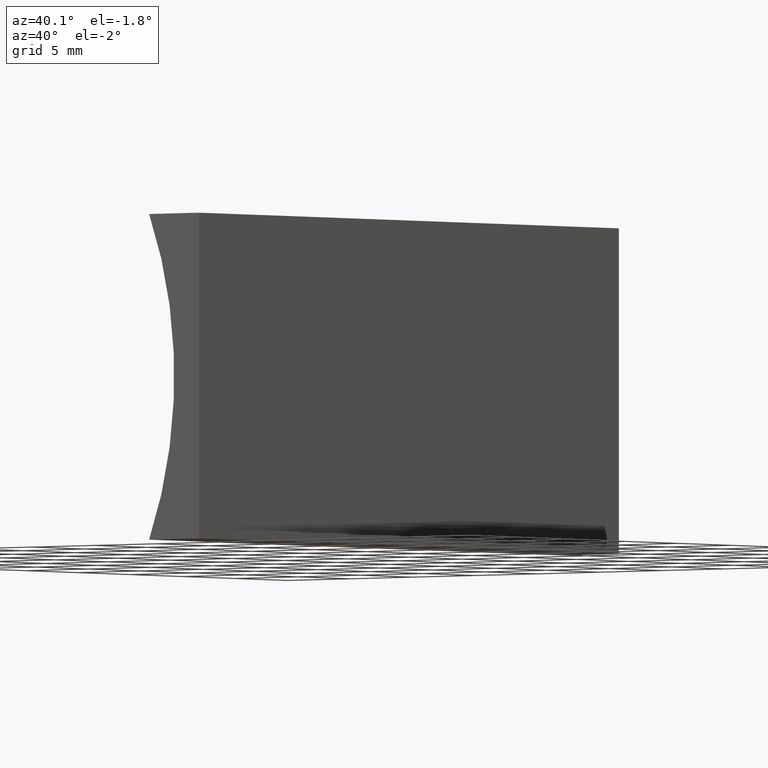
[diagram: clean part render]
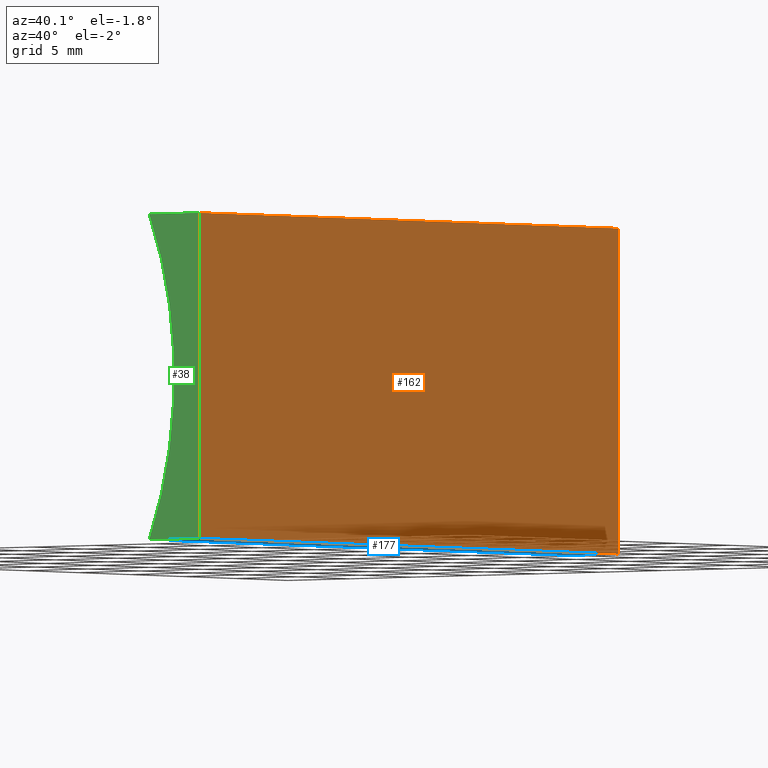
[diagram: same view with three faces highlighted in distinct colors, each labeled with its STEP entity id]
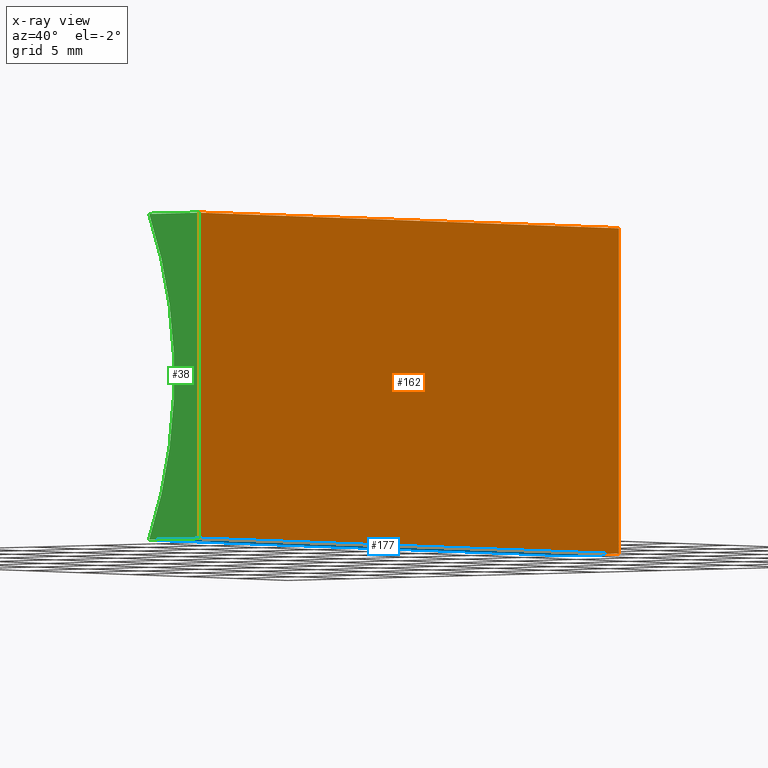
[diagram: x-ray of the same camera — body ghosted, the three highlighted faces saturated]
A machine part, auxiliary view with three faces highlighted in distinct colors.
The next image is the same camera in x-ray (body ghosted, the three faces saturated) — at least one of them is partly hidden behind the body in this view.
Their STEP definitions:

[orange] entity #162 — the highlighted planar face has unit normal (-1, 0, 0).
#5 = ORIENTED_EDGE ( 'NONE', *, *, #176, .T. ) ;
#8 = PLANE ( 'NONE',  #158 ) ;
#11 = ORIENTED_EDGE ( 'NONE', *, *, #113, .T. ) ;
#18 = VECTOR ( 'NONE', #165, 1000.000000000000000 ) ;
#21 = CARTESIAN_POINT ( 'NONE',  ( 0.0000000000000000000, 40.00000000000000000, 0.0000000000000000000 ) ) ;
#34 = CARTESIAN_POINT ( 'NONE',  ( 0.0000000000000000000, 40.00000000000000000, 0.0000000000000000000 ) ) ;
#42 = CARTESIAN_POINT ( 'NONE',  ( 1.224646799147353300E-015, 40.00000000000000000, 20.00000000000000000 ) ) ;
#46 = VECTOR ( 'NONE', #54, 1000.000000000000000 ) ;
#54 = DIRECTION ( 'NONE',  ( -6.123233995736766000E-017, -0.0000000000000000000, -1.000000000000000000 ) ) ;
#56 = ORIENTED_EDGE ( 'NONE', *, *, #79, .F. ) ;
#59 = DIRECTION ( 'NONE',  ( 6.123233995736766000E-017, 0.0000000000000000000, 1.000000000000000000 ) ) ;
#76 = VECTOR ( 'NONE', #118, 1000.000000000000000 ) ;
#79 = EDGE_CURVE ( 'NONE', #101, #173, #149, .T. ) ;
#81 = FACE_OUTER_BOUND ( 'NONE', #85, .T. ) ;
#85 = EDGE_LOOP ( 'NONE', ( #11, #130, #56, #5 ) ) ;
#89 = CARTESIAN_POINT ( 'NONE',  ( 0.0000000000000000000, 40.00000000000000000, 0.0000000000000000000 ) ) ;
#90 = CARTESIAN_POINT ( 'NONE',  ( 0.0000000000000000000, 0.0000000000000000000, 0.0000000000000000000 ) ) ;
#101 = VERTEX_POINT ( 'NONE', #42 ) ;
#103 = EDGE_CURVE ( 'NONE', #173, #131, #144, .T. ) ;
#107 = VECTOR ( 'NONE', #160, 1000.000000000000000 ) ;
#113 = EDGE_CURVE ( 'NONE', #200, #131, #156, .T. ) ;
#118 = DIRECTION ( 'NONE',  ( -0.0000000000000000000, -1.000000000000000000, -0.0000000000000000000 ) ) ;
#121 = CARTESIAN_POINT ( 'NONE',  ( 1.224646799147353300E-015, 40.00000000000000000, 20.00000000000000000 ) ) ;
#130 = ORIENTED_EDGE ( 'NONE', *, *, #103, .F. ) ;
#131 = VERTEX_POINT ( 'NONE', #90 ) ;
#134 = DIRECTION ( 'NONE',  ( -1.000000000000000000, 0.0000000000000000000, 6.123233995736766000E-017 ) ) ;
#144 = LINE ( 'NONE', #21, #76 ) ;
#149 = LINE ( 'NONE', #34, #18 ) ;
#156 = LINE ( 'NONE', #194, #46 ) ;
#158 = AXIS2_PLACEMENT_3D ( 'NONE', #164, #134, #59 ) ;
#160 = DIRECTION ( 'NONE',  ( -0.0000000000000000000, -1.000000000000000000, -0.0000000000000000000 ) ) ;
#162 = ADVANCED_FACE ( 'NONE', ( #81 ), #8, .F. ) ;
#164 = CARTESIAN_POINT ( 'NONE',  ( 0.0000000000000000000, 40.00000000000000000, 0.0000000000000000000 ) ) ;
#165 = DIRECTION ( 'NONE',  ( -6.123233995736766000E-017, -0.0000000000000000000, -1.000000000000000000 ) ) ;
#173 = VERTEX_POINT ( 'NONE', #89 ) ;
#176 = EDGE_CURVE ( 'NONE', #101, #200, #204, .T. ) ;
#181 = CARTESIAN_POINT ( 'NONE',  ( 1.224646799147353300E-015, 0.0000000000000000000, 20.00000000000000000 ) ) ;
#194 = CARTESIAN_POINT ( 'NONE',  ( 0.0000000000000000000, 0.0000000000000000000, 0.0000000000000000000 ) ) ;
#200 = VERTEX_POINT ( 'NONE', #181 ) ;
#204 = LINE ( 'NONE', #121, #107 ) ;

[blue] entity #177 — the highlighted planar face has unit normal (0, -0, 1).
#10 = CARTESIAN_POINT ( 'NONE',  ( -4.012581935117213800, 40.00000000000000000, 5.204170427930421300E-015 ) ) ;
#19 = LINE ( 'NONE', #198, #115 ) ;
#21 = CARTESIAN_POINT ( 'NONE',  ( 0.0000000000000000000, 40.00000000000000000, 0.0000000000000000000 ) ) ;
#24 = VERTEX_POINT ( 'NONE', #159 ) ;
#26 = VERTEX_POINT ( 'NONE', #10 ) ;
#27 = DIRECTION ( 'NONE',  ( -1.000000000000000000, 0.0000000000000000000, 8.646420205378970500E-016 ) ) ;
#48 = ORIENTED_EDGE ( 'NONE', *, *, #170, .F. ) ;
#57 = ORIENTED_EDGE ( 'NONE', *, *, #86, .F. ) ;
#73 = ORIENTED_EDGE ( 'NONE', *, *, #103, .T. ) ;
#76 = VECTOR ( 'NONE', #118, 1000.000000000000000 ) ;
#86 = EDGE_CURVE ( 'NONE', #26, #24, #184, .T. ) ;
#89 = CARTESIAN_POINT ( 'NONE',  ( 0.0000000000000000000, 40.00000000000000000, 0.0000000000000000000 ) ) ;
#90 = CARTESIAN_POINT ( 'NONE',  ( 0.0000000000000000000, 0.0000000000000000000, 0.0000000000000000000 ) ) ;
#103 = EDGE_CURVE ( 'NONE', #173, #131, #144, .T. ) ;
#104 = EDGE_CURVE ( 'NONE', #131, #24, #153, .T. ) ;
#105 = DIRECTION ( 'NONE',  ( 8.646420205378970500E-016, -0.0000000000000000000, 1.000000000000000000 ) ) ;
#110 = EDGE_LOOP ( 'NONE', ( #179, #57, #48, #73 ) ) ;
#115 = VECTOR ( 'NONE', #140, 1000.000000000000000 ) ;
#118 = DIRECTION ( 'NONE',  ( -0.0000000000000000000, -1.000000000000000000, -0.0000000000000000000 ) ) ;
#127 = VECTOR ( 'NONE', #148, 1000.000000000000000 ) ;
#131 = VERTEX_POINT ( 'NONE', #90 ) ;
#135 = AXIS2_PLACEMENT_3D ( 'NONE', #147, #105, #155 ) ;
#140 = DIRECTION ( 'NONE',  ( -1.000000000000000000, 0.0000000000000000000, 8.646420205378970500E-016 ) ) ;
#144 = LINE ( 'NONE', #21, #76 ) ;
#147 = CARTESIAN_POINT ( 'NONE',  ( 0.0000000000000000000, 40.00000000000000000, 0.0000000000000000000 ) ) ;
#148 = DIRECTION ( 'NONE',  ( -0.0000000000000000000, -1.000000000000000000, -0.0000000000000000000 ) ) ;
#153 = LINE ( 'NONE', #174, #197 ) ;
#155 = DIRECTION ( 'NONE',  ( 1.000000000000000000, 0.0000000000000000000, -8.646420205378970500E-016 ) ) ;
#159 = CARTESIAN_POINT ( 'NONE',  ( -4.012581935117213800, 0.0000000000000000000, 5.204170427930421300E-015 ) ) ;
#167 = FACE_OUTER_BOUND ( 'NONE', #110, .T. ) ;
#168 = CARTESIAN_POINT ( 'NONE',  ( -4.012581935117213800, 40.00000000000000000, 5.204170427930421300E-015 ) ) ;
#170 = EDGE_CURVE ( 'NONE', #173, #26, #19, .T. ) ;
#173 = VERTEX_POINT ( 'NONE', #89 ) ;
#174 = CARTESIAN_POINT ( 'NONE',  ( 0.0000000000000000000, 0.0000000000000000000, 0.0000000000000000000 ) ) ;
#177 = ADVANCED_FACE ( 'NONE', ( #167 ), #189, .F. ) ;
#179 = ORIENTED_EDGE ( 'NONE', *, *, #104, .T. ) ;
#184 = LINE ( 'NONE', #168, #127 ) ;
#189 = PLANE ( 'NONE',  #135 ) ;
#197 = VECTOR ( 'NONE', #27, 1000.000000000000000 ) ;
#198 = CARTESIAN_POINT ( 'NONE',  ( 0.0000000000000000000, 40.00000000000000000, 0.0000000000000000000 ) ) ;

[green] entity #38 — the highlighted planar face has unit normal (0, 1, 0).
#1 = DIRECTION ( 'NONE',  ( 0.0000000000000000000, 0.0000000000000000000, 1.000000000000000000 ) ) ;
#2 = AXIS2_PLACEMENT_3D ( 'NONE', #64, #192, #1 ) ;
#14 = PLANE ( 'NONE',  #71 ) ;
#16 = ORIENTED_EDGE ( 'NONE', *, *, #78, .F. ) ;
#17 = EDGE_CURVE ( 'NONE', #24, #190, #99, .T. ) ;
#22 = ORIENTED_EDGE ( 'NONE', *, *, #104, .F. ) ;
#24 = VERTEX_POINT ( 'NONE', #159 ) ;
#27 = DIRECTION ( 'NONE',  ( -1.000000000000000000, 0.0000000000000000000, 8.646420205378970500E-016 ) ) ;
#28 = CARTESIAN_POINT ( 'NONE',  ( -27.85000000000000100, 0.0000000000000000000, 10.00000000000000200 ) ) ;
#38 = ADVANCED_FACE ( 'NONE', ( #161 ), #14, .F. ) ;
#39 = ORIENTED_EDGE ( 'NONE', *, *, #113, .F. ) ;
#46 = VECTOR ( 'NONE', #54, 1000.000000000000000 ) ;
#54 = DIRECTION ( 'NONE',  ( -6.123233995736766000E-017, -0.0000000000000000000, -1.000000000000000000 ) ) ;
#58 = DIRECTION ( 'NONE',  ( 0.0000000000000000000, -0.0000000000000000000, 1.000000000000000000 ) ) ;
#64 = CARTESIAN_POINT ( 'NONE',  ( -27.85000000000000100, 0.0000000000000000000, 10.00000000000000200 ) ) ;
#71 = AXIS2_PLACEMENT_3D ( 'NONE', #28, #145, #58 ) ;
#75 = CARTESIAN_POINT ( 'NONE',  ( -4.012581935117213000, 0.0000000000000000000, 19.99999999999999600 ) ) ;
#78 = EDGE_CURVE ( 'NONE', #190, #200, #186, .T. ) ;
#90 = CARTESIAN_POINT ( 'NONE',  ( 0.0000000000000000000, 0.0000000000000000000, 0.0000000000000000000 ) ) ;
#91 = DIRECTION ( 'NONE',  ( 1.000000000000000000, -0.0000000000000000000, 8.646420205378973500E-016 ) ) ;
#99 = CIRCLE ( 'NONE', #2, 25.85000000000000500 ) ;
#104 = EDGE_CURVE ( 'NONE', #131, #24, #153, .T. ) ;
#113 = EDGE_CURVE ( 'NONE', #200, #131, #156, .T. ) ;
#131 = VERTEX_POINT ( 'NONE', #90 ) ;
#133 = VECTOR ( 'NONE', #91, 1000.000000000000000 ) ;
#136 = CARTESIAN_POINT ( 'NONE',  ( 1.224646799147353300E-015, 0.0000000000000000000, 20.00000000000000000 ) ) ;
#145 = DIRECTION ( 'NONE',  ( 0.0000000000000000000, 1.000000000000000000, 0.0000000000000000000 ) ) ;
#153 = LINE ( 'NONE', #174, #197 ) ;
#156 = LINE ( 'NONE', #194, #46 ) ;
#159 = CARTESIAN_POINT ( 'NONE',  ( -4.012581935117213800, 0.0000000000000000000, 5.204170427930421300E-015 ) ) ;
#161 = FACE_OUTER_BOUND ( 'NONE', #185, .T. ) ;
#174 = CARTESIAN_POINT ( 'NONE',  ( 0.0000000000000000000, 0.0000000000000000000, 0.0000000000000000000 ) ) ;
#181 = CARTESIAN_POINT ( 'NONE',  ( 1.224646799147353300E-015, 0.0000000000000000000, 20.00000000000000000 ) ) ;
#185 = EDGE_LOOP ( 'NONE', ( #22, #39, #16, #188 ) ) ;
#186 = LINE ( 'NONE', #136, #133 ) ;
#188 = ORIENTED_EDGE ( 'NONE', *, *, #17, .F. ) ;
#190 = VERTEX_POINT ( 'NONE', #75 ) ;
#192 = DIRECTION ( 'NONE',  ( -0.0000000000000000000, -1.000000000000000000, -0.0000000000000000000 ) ) ;
#194 = CARTESIAN_POINT ( 'NONE',  ( 0.0000000000000000000, 0.0000000000000000000, 0.0000000000000000000 ) ) ;
#197 = VECTOR ( 'NONE', #27, 1000.000000000000000 ) ;
#200 = VERTEX_POINT ( 'NONE', #181 ) ;